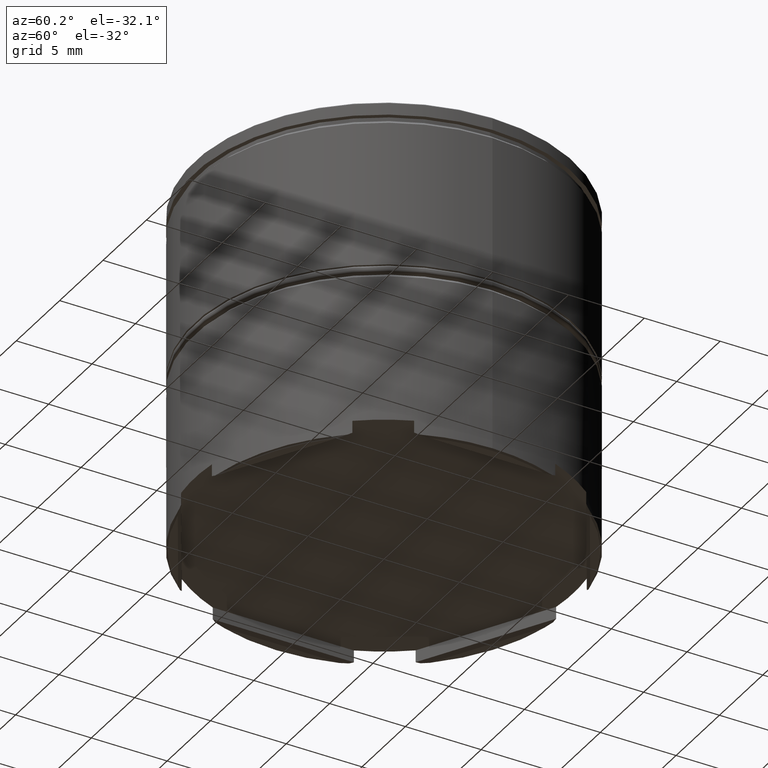
[diagram: clean part render]
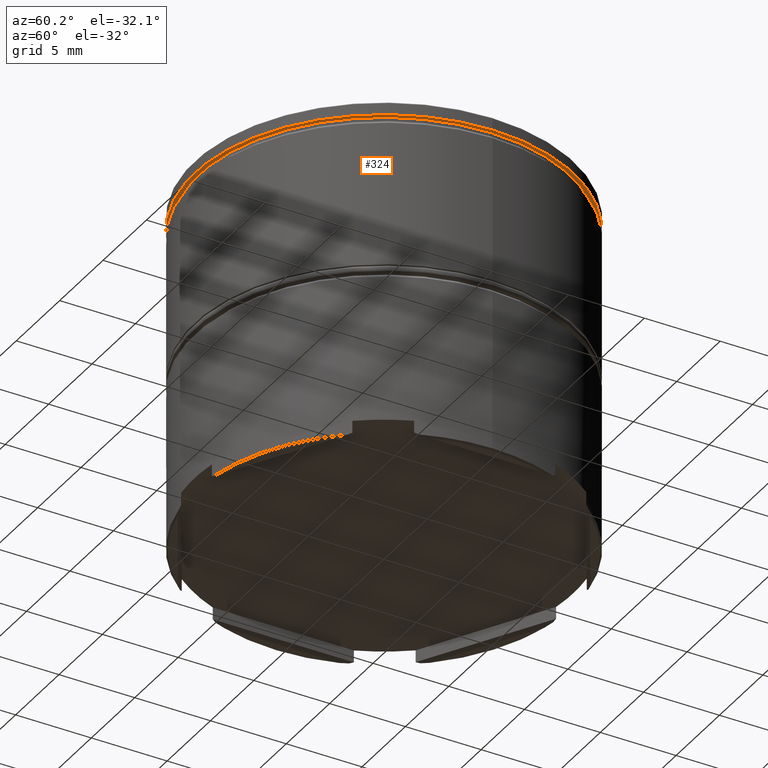
[diagram: same view with one face highlighted and labeled with its STEP entity id]
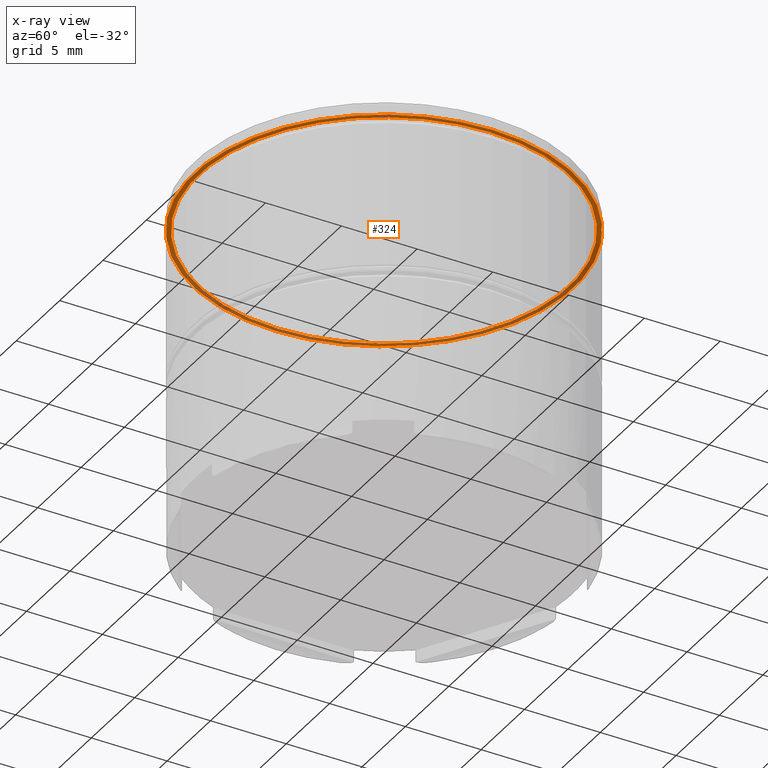
[diagram: x-ray of the same camera — body ghosted, the highlighted face saturated]
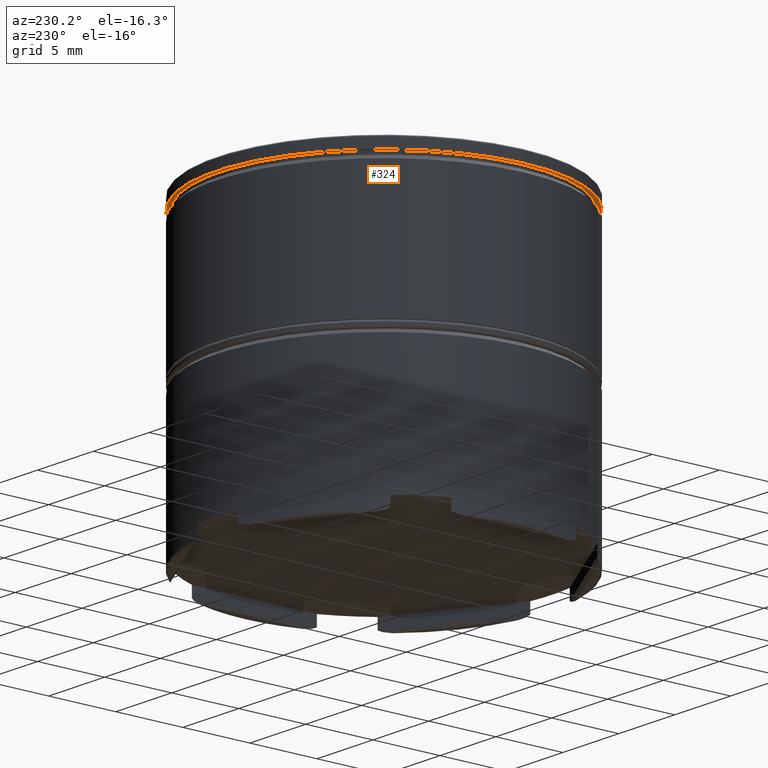
[diagram: same view with one face highlighted and labeled with its STEP entity id]
A machine part, auxiliary view. The second image highlights one B-rep face of the part: STEP entity #324.
The next image is the same camera in x-ray: the body ghosted, the highlighted face saturated — about 47% of this face is hidden behind the body in this view.
A second angle (auxiliary view) of the same face is appended — the face is thin or edge-on in the first view.
In plain terms, the highlighted planar face has unit normal (0, 0, -1).
Its self-contained STEP definition (entity closure, byte-faithful):
#4 = AXIS2_PLACEMENT_3D ( 'NONE', #473, #1078, #218 ) ;
#23 = EDGE_CURVE ( 'NONE', #101, #863, #283, .T. ) ;
#79 = CARTESIAN_POINT ( 'NONE',  ( 0.000000000000000000, 0.000000000000000000, -0.8749999999999998890 ) ) ;
#97 = EDGE_CURVE ( 'NONE', #1424, #1302, #1582, .T. ) ;
#101 = VERTEX_POINT ( 'NONE', #1105 ) ;
#106 = PLANE ( 'NONE',  #4 ) ;
#107 = EDGE_CURVE ( 'NONE', #1302, #1424, #544, .T. ) ;
#114 = DIRECTION ( 'NONE',  ( -0.000000000000000000, -0.000000000000000000, 1.000000000000000000 ) ) ;
#204 = EDGE_LOOP ( 'NONE', ( #1492, #1400 ) ) ;
#218 = DIRECTION ( 'NONE',  ( -1.000000000000000000, 0.000000000000000000, -0.000000000000000000 ) ) ;
#283 = CIRCLE ( 'NONE', #569, 12.20000000000000107 ) ;
#297 = ORIENTED_EDGE ( 'NONE', *, *, #23, .T. ) ;
#322 = CARTESIAN_POINT ( 'NONE',  ( -12.50000000000000000, 1.530808498934191521E-15, -0.8749999999999998890 ) ) ;
#324 = ADVANCED_FACE ( 'NONE', ( #600, #468 ), #106, .T. ) ;
#352 = DIRECTION ( 'NONE',  ( -0.000000000000000000, -0.000000000000000000, 1.000000000000000000 ) ) ;
#468 = FACE_OUTER_BOUND ( 'NONE', #204, .T. ) ;
#473 = CARTESIAN_POINT ( 'NONE',  ( 0.000000000000000000, 12.50000000000000000, -0.8749999999999998890 ) ) ;
#485 = DIRECTION ( 'NONE',  ( 1.000000000000000000, 0.000000000000000000, 0.000000000000000000 ) ) ;
#528 = DIRECTION ( 'NONE',  ( -0.000000000000000000, -0.000000000000000000, 1.000000000000000000 ) ) ;
#544 = CIRCLE ( 'NONE', #669, 12.50000000000000000 ) ;
#560 = DIRECTION ( 'NONE',  ( 1.000000000000000000, 0.000000000000000000, 0.000000000000000000 ) ) ;
#569 = AXIS2_PLACEMENT_3D ( 'NONE', #1631, #528, #1022 ) ;
#600 = FACE_BOUND ( 'NONE', #1329, .T. ) ;
#612 = AXIS2_PLACEMENT_3D ( 'NONE', #79, #1073, #560 ) ;
#669 = AXIS2_PLACEMENT_3D ( 'NONE', #1127, #114, #485 ) ;
#752 = CARTESIAN_POINT ( 'NONE',  ( -12.20000000000000107, 1.494069094959771056E-15, -0.8749999999999998890 ) ) ;
#838 = CARTESIAN_POINT ( 'NONE',  ( 0.000000000000000000, 0.000000000000000000, -0.8749999999999998890 ) ) ;
#863 = VERTEX_POINT ( 'NONE', #752 ) ;
#923 = CIRCLE ( 'NONE', #612, 12.20000000000000107 ) ;
#957 = EDGE_CURVE ( 'NONE', #863, #101, #923, .T. ) ;
#1002 = AXIS2_PLACEMENT_3D ( 'NONE', #838, #352, #1350 ) ;
#1022 = DIRECTION ( 'NONE',  ( 1.000000000000000000, 0.000000000000000000, 0.000000000000000000 ) ) ;
#1073 = DIRECTION ( 'NONE',  ( -0.000000000000000000, -0.000000000000000000, 1.000000000000000000 ) ) ;
#1078 = DIRECTION ( 'NONE',  ( 0.000000000000000000, 0.000000000000000000, -1.000000000000000000 ) ) ;
#1105 = CARTESIAN_POINT ( 'NONE',  ( 12.20000000000000107, 0.000000000000000000, -0.8749999999999998890 ) ) ;
#1127 = CARTESIAN_POINT ( 'NONE',  ( 0.000000000000000000, 0.000000000000000000, -0.8749999999999998890 ) ) ;
#1281 = ORIENTED_EDGE ( 'NONE', *, *, #957, .T. ) ;
#1302 = VERTEX_POINT ( 'NONE', #1441 ) ;
#1329 = EDGE_LOOP ( 'NONE', ( #297, #1281 ) ) ;
#1350 = DIRECTION ( 'NONE',  ( 1.000000000000000000, 0.000000000000000000, 0.000000000000000000 ) ) ;
#1400 = ORIENTED_EDGE ( 'NONE', *, *, #97, .F. ) ;
#1424 = VERTEX_POINT ( 'NONE', #322 ) ;
#1441 = CARTESIAN_POINT ( 'NONE',  ( 12.50000000000000000, 0.000000000000000000, -0.8749999999999998890 ) ) ;
#1492 = ORIENTED_EDGE ( 'NONE', *, *, #107, .F. ) ;
#1582 = CIRCLE ( 'NONE', #1002, 12.50000000000000000 ) ;
#1631 = CARTESIAN_POINT ( 'NONE',  ( 0.000000000000000000, 0.000000000000000000, -0.8749999999999998890 ) ) ;